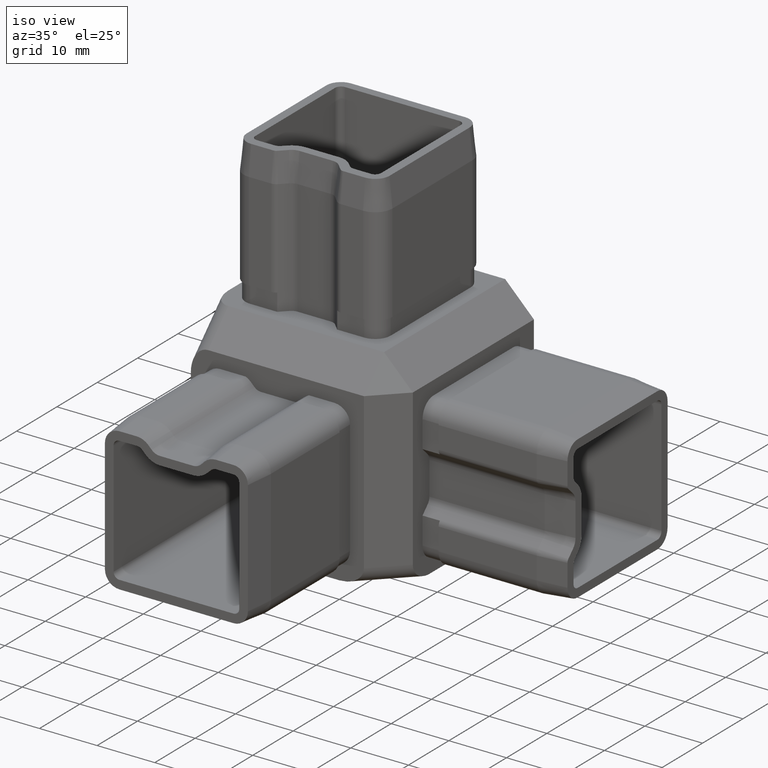
[diagram: clean part render]
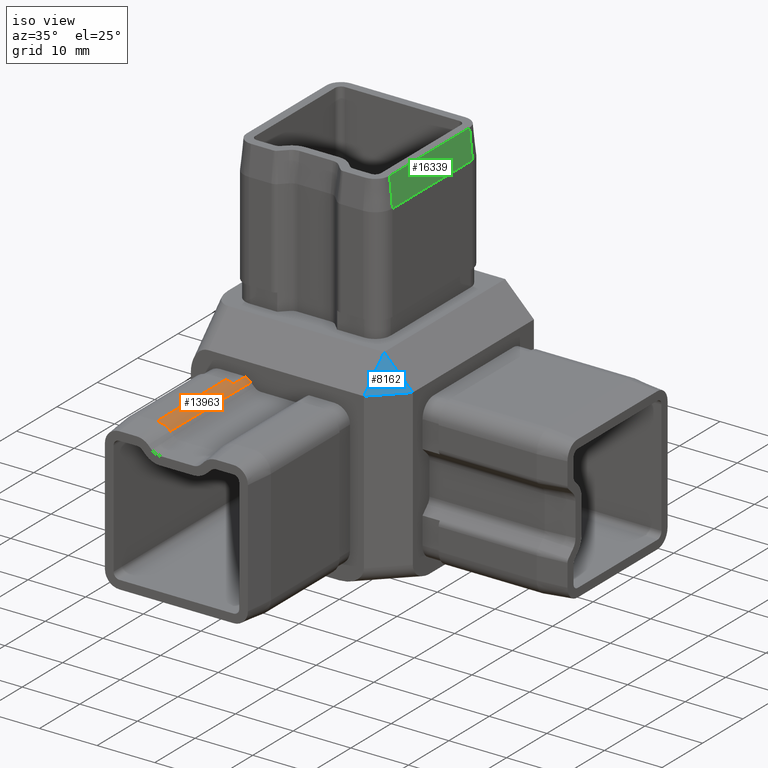
[diagram: same view with three faces highlighted in distinct colors, each labeled with its STEP entity id]
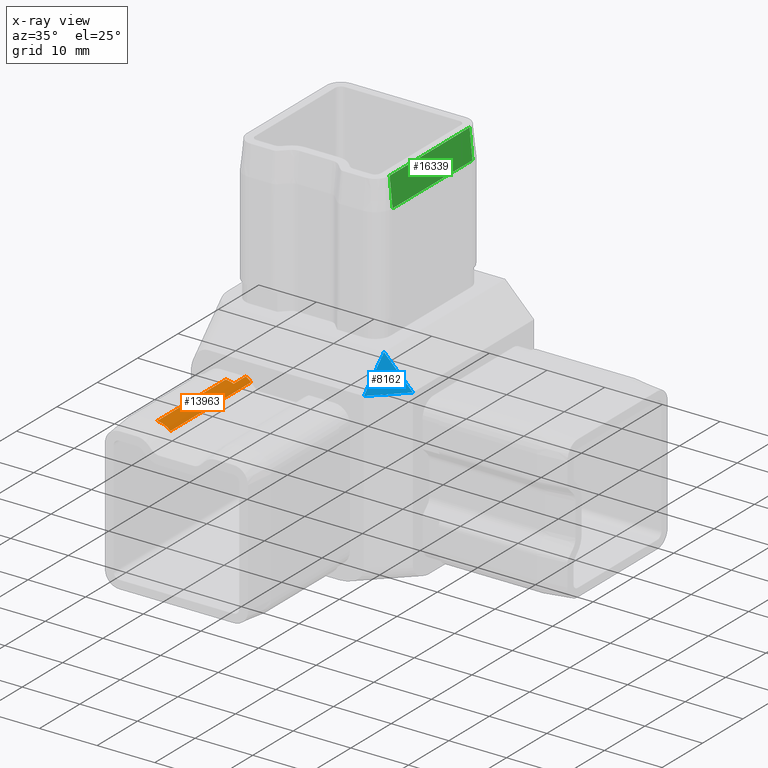
[diagram: x-ray of the same camera — body ghosted, the three highlighted faces saturated]
A machine part, iso view with three faces highlighted in distinct colors.
The next image is the same camera in x-ray (body ghosted, the three faces saturated) — at least one of them is partly hidden behind the body in this view.
Their STEP definitions:

[orange] entity #13963 — the highlighted cylindrical surface (edge-blend (fillet) strip) has radius 3.2677 mm, axis along (-0, 1, -0).
#300 = AXIS2_PLACEMENT_3D ( 'NONE', #1527, #4069, #16438 ) ;
#915 = DIRECTION ( 'NONE',  ( -0.0000000000000000000, 1.000000000000000000, -0.0000000000000000000 ) ) ;
#939 = VECTOR ( 'NONE', #915, 1000.000000000000000 ) ;
#1055 = ORIENTED_EDGE ( 'NONE', *, *, #18454, .F. ) ;
#1269 = VERTEX_POINT ( 'NONE', #13481 ) ;
#1527 = CARTESIAN_POINT ( 'NONE',  ( -9.353518743592463400, -20.49999999999999600, 7.132316692292887300 ) ) ;
#1888 = VERTEX_POINT ( 'NONE', #16500 ) ;
#1968 = VECTOR ( 'NONE', #14961, 1000.000000000000000 ) ;
#2359 = CIRCLE ( 'NONE', #300, 3.267683307707108600 ) ;
#3282 = CARTESIAN_POINT ( 'NONE',  ( -7.985816296192358400, -42.50000000000000000, 10.10000000000000100 ) ) ;
#3354 = ORIENTED_EDGE ( 'NONE', *, *, #17916, .T. ) ;
#3437 = CARTESIAN_POINT ( 'NONE',  ( -9.353518743592466900, -37.50000000000000700, 10.39999999999999900 ) ) ;
#3498 = ORIENTED_EDGE ( 'NONE', *, *, #16632, .T. ) ;
#3705 = EDGE_CURVE ( 'NONE', #17196, #3875, #8835, .T. ) ;
#3786 = VERTEX_POINT ( 'NONE', #4267 ) ;
#3875 = VERTEX_POINT ( 'NONE', #14764 ) ;
#4069 = DIRECTION ( 'NONE',  ( 0.0000000000000000000, 1.000000000000000000, 0.0000000000000000000 ) ) ;
#4267 = CARTESIAN_POINT ( 'NONE',  ( -7.985816296192358400, -17.49999999999999600, 10.10000000000000300 ) ) ;
#4349 = EDGE_CURVE ( 'NONE', #1888, #3786, #9478, .T. ) ;
#4587 = CARTESIAN_POINT ( 'NONE',  ( -7.042917717942680500, -17.50000000000000000, 9.442917717942672000 ) ) ;
#6710 = ORIENTED_EDGE ( 'NONE', *, *, #8508, .F. ) ;
#6740 = DIRECTION ( 'NONE',  ( -0.0000000000000000000, 1.000000000000000000, -0.0000000000000000000 ) ) ;
#6920 = DIRECTION ( 'NONE',  ( 0.0000000000000000000, 0.0000000000000000000, 1.000000000000000000 ) ) ;
#7215 = DIRECTION ( 'NONE',  ( 0.0000000000000000000, 0.0000000000000000000, 1.000000000000000000 ) ) ;
#7323 = CARTESIAN_POINT ( 'NONE',  ( -9.353518743592463400, -42.50000000000000000, 7.132316692292887300 ) ) ;
#7671 = CARTESIAN_POINT ( 'NONE',  ( -9.353518743592463400, -17.50000000000000000, 7.132316692292887300 ) ) ;
#8266 = CARTESIAN_POINT ( 'NONE',  ( -9.353518743592463400, -37.50000000000000700, 7.132316692292887300 ) ) ;
#8508 = EDGE_CURVE ( 'NONE', #1269, #1888, #2359, .T. ) ;
#8626 = DIRECTION ( 'NONE',  ( -0.0000000000000000000, 1.000000000000000000, -0.0000000000000000000 ) ) ;
#8683 = AXIS2_PLACEMENT_3D ( 'NONE', #8266, #6740, #6920 ) ;
#8835 = CIRCLE ( 'NONE', #8683, 3.267683307707110400 ) ;
#8887 = DIRECTION ( 'NONE',  ( 0.0000000000000000000, -1.000000000000000000, 0.0000000000000000000 ) ) ;
#9478 = LINE ( 'NONE', #3282, #1968 ) ;
#9635 = CARTESIAN_POINT ( 'NONE',  ( -7.042917717942681400, -42.50000000000000000, 9.442917717942672000 ) ) ;
#10265 = ORIENTED_EDGE ( 'NONE', *, *, #4349, .F. ) ;
#10860 = AXIS2_PLACEMENT_3D ( 'NONE', #7323, #11525, #7215 ) ;
#11183 = LINE ( 'NONE', #9635, #939 ) ;
#11525 = DIRECTION ( 'NONE',  ( -0.0000000000000000000, 1.000000000000000000, -0.0000000000000000000 ) ) ;
#11700 = CARTESIAN_POINT ( 'NONE',  ( -9.353518743592463400, -42.50000000000000000, 10.39999999999999700 ) ) ;
#11805 = DIRECTION ( 'NONE',  ( 0.0000000000000000000, 0.0000000000000000000, -1.000000000000000000 ) ) ;
#12905 = FACE_OUTER_BOUND ( 'NONE', #15612, .T. ) ;
#13481 = CARTESIAN_POINT ( 'NONE',  ( -9.353518743592463400, -20.49999999999999600, 10.40000000000000000 ) ) ;
#13946 = CIRCLE ( 'NONE', #18031, 3.267683307707109500 ) ;
#13963 = ADVANCED_FACE ( 'NONE', ( #12905 ), #16505, .T. ) ;
#14305 = VERTEX_POINT ( 'NONE', #4587 ) ;
#14558 = LINE ( 'NONE', #11700, #15250 ) ;
#14764 = CARTESIAN_POINT ( 'NONE',  ( -7.042917717942682300, -37.50000000000000700, 9.442917717942675500 ) ) ;
#14961 = DIRECTION ( 'NONE',  ( -0.0000000000000000000, 1.000000000000000000, -0.0000000000000000000 ) ) ;
#15250 = VECTOR ( 'NONE', #8626, 1000.000000000000000 ) ;
#15612 = EDGE_LOOP ( 'NONE', ( #17355, #3354, #3498, #10265, #6710, #1055 ) ) ;
#16438 = DIRECTION ( 'NONE',  ( 0.0000000000000000000, 0.0000000000000000000, 1.000000000000000000 ) ) ;
#16500 = CARTESIAN_POINT ( 'NONE',  ( -7.985816296192358400, -20.49999999999999600, 10.10000000000000300 ) ) ;
#16505 = CYLINDRICAL_SURFACE ( 'NONE', #10860, 3.267683307707108600 ) ;
#16632 = EDGE_CURVE ( 'NONE', #14305, #3786, #13946, .T. ) ;
#17196 = VERTEX_POINT ( 'NONE', #3437 ) ;
#17355 = ORIENTED_EDGE ( 'NONE', *, *, #3705, .T. ) ;
#17916 = EDGE_CURVE ( 'NONE', #3875, #14305, #11183, .T. ) ;
#18031 = AXIS2_PLACEMENT_3D ( 'NONE', #7671, #8887, #11805 ) ;
#18454 = EDGE_CURVE ( 'NONE', #17196, #1269, #14558, .T. ) ;

[blue] entity #8162 — the highlighted planar face has unit normal (0.5774, -0.5774, 0.5774).
#45 = EDGE_CURVE ( 'NONE', #12548, #15695, #3270, .T. ) ;
#152 = CARTESIAN_POINT ( 'NONE',  ( 12.49999999999999600, -12.49999999999999300, 17.50000000000000000 ) ) ;
#836 = EDGE_CURVE ( 'NONE', #15695, #14717, #17551, .T. ) ;
#2363 = VECTOR ( 'NONE', #13372, 1000.000000000000000 ) ;
#3061 = VECTOR ( 'NONE', #3169, 1000.000000000000100 ) ;
#3169 = DIRECTION ( 'NONE',  ( -2.884444029575346000E-015, -0.7071067811865460200, -0.7071067811865489100 ) ) ;
#3270 = LINE ( 'NONE', #10351, #3061 ) ;
#3435 = PLANE ( 'NONE',  #3982 ) ;
#3495 = DIRECTION ( 'NONE',  ( 0.5773502691896258400, -0.5773502691896281700, 0.5773502691896234000 ) ) ;
#3700 = CARTESIAN_POINT ( 'NONE',  ( 17.50000000000000000, -12.49999999999999300, 12.49999999999997700 ) ) ;
#3982 = AXIS2_PLACEMENT_3D ( 'NONE', #7954, #3495, #9470 ) ;
#5227 = ORIENTED_EDGE ( 'NONE', *, *, #45, .T. ) ;
#7538 = CARTESIAN_POINT ( 'NONE',  ( 17.50000000000000000, -12.49999999999999300, 12.49999999999997700 ) ) ;
#7716 = CARTESIAN_POINT ( 'NONE',  ( 12.49999999999997700, -17.49999999999999600, 12.49999999999997700 ) ) ;
#7954 = CARTESIAN_POINT ( 'NONE',  ( 17.50000000000000000, -12.49999999999999300, 12.49999999999997700 ) ) ;
#8162 = ADVANCED_FACE ( 'NONE', ( #14631 ), #3435, .T. ) ;
#8744 = VECTOR ( 'NONE', #8846, 1000.000000000000100 ) ;
#8846 = DIRECTION ( 'NONE',  ( 0.7071067811865489100, 0.7071067811865460200, -0.0000000000000000000 ) ) ;
#9222 = ORIENTED_EDGE ( 'NONE', *, *, #836, .T. ) ;
#9470 = DIRECTION ( 'NONE',  ( 0.7071067811865489100, 0.7071067811865460200, 0.0000000000000000000 ) ) ;
#9509 = EDGE_CURVE ( 'NONE', #12548, #14717, #11459, .T. ) ;
#10351 = CARTESIAN_POINT ( 'NONE',  ( 12.49999999999998800, -14.99999999999999600, 14.99999999999998900 ) ) ;
#11459 = LINE ( 'NONE', #7538, #2363 ) ;
#12548 = VERTEX_POINT ( 'NONE', #152 ) ;
#13330 = CARTESIAN_POINT ( 'NONE',  ( 17.50000000000000000, -12.49999999999999300, 12.49999999999997700 ) ) ;
#13372 = DIRECTION ( 'NONE',  ( 0.7071067811865459100, -1.239037099348066900E-016, -0.7071067811865491300 ) ) ;
#14631 = FACE_OUTER_BOUND ( 'NONE', #15543, .T. ) ;
#14717 = VERTEX_POINT ( 'NONE', #3700 ) ;
#15543 = EDGE_LOOP ( 'NONE', ( #5227, #9222, #18514 ) ) ;
#15695 = VERTEX_POINT ( 'NONE', #7716 ) ;
#17551 = LINE ( 'NONE', #13330, #8744 ) ;
#18514 = ORIENTED_EDGE ( 'NONE', *, *, #9509, .F. ) ;

[green] entity #16339 — the highlighted planar face has unit normal (-0.995, 0, -0.0995).
#48 = VERTEX_POINT ( 'NONE', #613 ) ;
#613 = CARTESIAN_POINT ( 'NONE',  ( 10.39999999999999700, -7.400000000000003900, 37.50000000000001400 ) ) ;
#1300 = DIRECTION ( 'NONE',  ( 0.09950371902099974800, 6.092845550116246800E-018, -0.9950371902099890400 ) ) ;
#1334 = CARTESIAN_POINT ( 'NONE',  ( 9.899999999999991500, -7.400000000000003900, 42.50000000000000700 ) ) ;
#1520 = ORIENTED_EDGE ( 'NONE', *, *, #6093, .F. ) ;
#1603 = VERTEX_POINT ( 'NONE', #9711 ) ;
#2131 = FACE_OUTER_BOUND ( 'NONE', #15368, .T. ) ;
#3235 = LINE ( 'NONE', #7435, #11656 ) ;
#3301 = EDGE_CURVE ( 'NONE', #18779, #1603, #7015, .T. ) ;
#3573 = AXIS2_PLACEMENT_3D ( 'NONE', #8199, #18322, #9646 ) ;
#3971 = LINE ( 'NONE', #14312, #14426 ) ;
#4420 = ORIENTED_EDGE ( 'NONE', *, *, #10752, .F. ) ;
#5710 = LINE ( 'NONE', #1334, #11386 ) ;
#6093 = EDGE_CURVE ( 'NONE', #18779, #8248, #3971, .T. ) ;
#7015 = LINE ( 'NONE', #11330, #17430 ) ;
#7199 = DIRECTION ( 'NONE',  ( 0.09950371902099974800, 6.092845550116246800E-018, -0.9950371902099890400 ) ) ;
#7435 = CARTESIAN_POINT ( 'NONE',  ( 10.39999999999999700, 12.40000000000000400, 37.50000000000001400 ) ) ;
#8101 = ORIENTED_EDGE ( 'NONE', *, *, #3301, .T. ) ;
#8199 = CARTESIAN_POINT ( 'NONE',  ( 9.899999999999991500, 12.40000000000000400, 42.50000000000000700 ) ) ;
#8248 = VERTEX_POINT ( 'NONE', #18259 ) ;
#9646 = DIRECTION ( 'NONE',  ( -0.09950371902099973400, 0.0000000000000000000, 0.9950371902099890400 ) ) ;
#9711 = CARTESIAN_POINT ( 'NONE',  ( 9.899999999999991500, -7.400000000000003900, 42.50000000000000700 ) ) ;
#9869 = DIRECTION ( 'NONE',  ( 0.0000000000000000000, -1.000000000000000000, 0.0000000000000000000 ) ) ;
#10721 = ORIENTED_EDGE ( 'NONE', *, *, #12091, .T. ) ;
#10752 = EDGE_CURVE ( 'NONE', #8248, #48, #3235, .T. ) ;
#11330 = CARTESIAN_POINT ( 'NONE',  ( 9.899999999999991500, 12.40000000000000400, 42.50000000000000700 ) ) ;
#11386 = VECTOR ( 'NONE', #7199, 1000.000000000000200 ) ;
#11656 = VECTOR ( 'NONE', #17304, 1000.000000000000000 ) ;
#12091 = EDGE_CURVE ( 'NONE', #1603, #48, #5710, .T. ) ;
#14312 = CARTESIAN_POINT ( 'NONE',  ( 9.899999999999991500, 12.40000000000000400, 42.50000000000000700 ) ) ;
#14426 = VECTOR ( 'NONE', #1300, 1000.000000000000200 ) ;
#15368 = EDGE_LOOP ( 'NONE', ( #1520, #8101, #10721, #4420 ) ) ;
#16339 = ADVANCED_FACE ( 'NONE', ( #2131 ), #16845, .F. ) ;
#16802 = CARTESIAN_POINT ( 'NONE',  ( 9.899999999999991500, 12.40000000000000400, 42.50000000000000700 ) ) ;
#16845 = PLANE ( 'NONE',  #3573 ) ;
#17304 = DIRECTION ( 'NONE',  ( 0.0000000000000000000, -1.000000000000000000, 0.0000000000000000000 ) ) ;
#17430 = VECTOR ( 'NONE', #9869, 1000.000000000000000 ) ;
#18259 = CARTESIAN_POINT ( 'NONE',  ( 10.39999999999999700, 12.40000000000000400, 37.50000000000001400 ) ) ;
#18322 = DIRECTION ( 'NONE',  ( -0.9950371902099891500, 0.0000000000000000000, -0.09950371902099974800 ) ) ;
#18779 = VERTEX_POINT ( 'NONE', #16802 ) ;